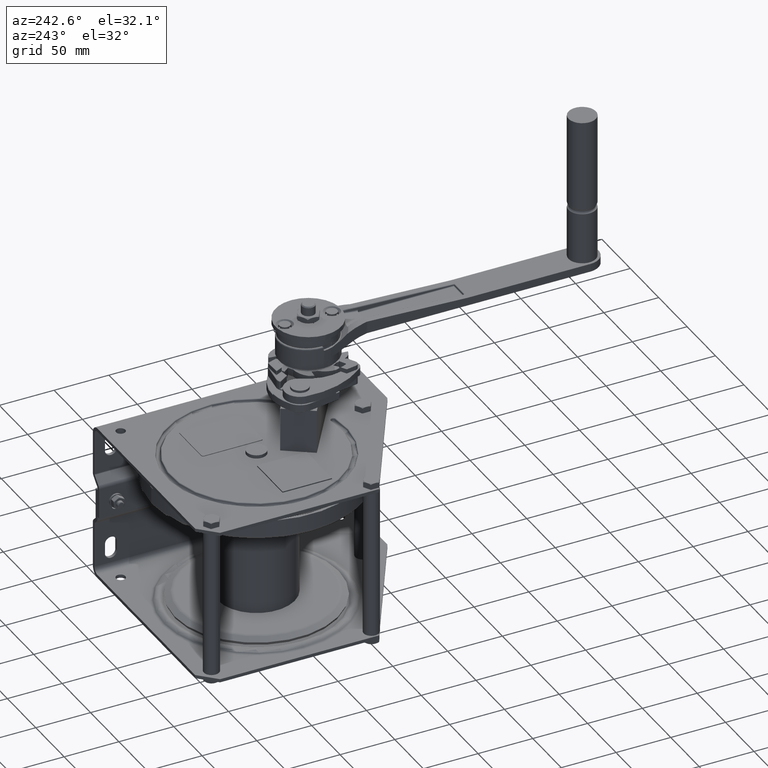
[diagram: clean part render]
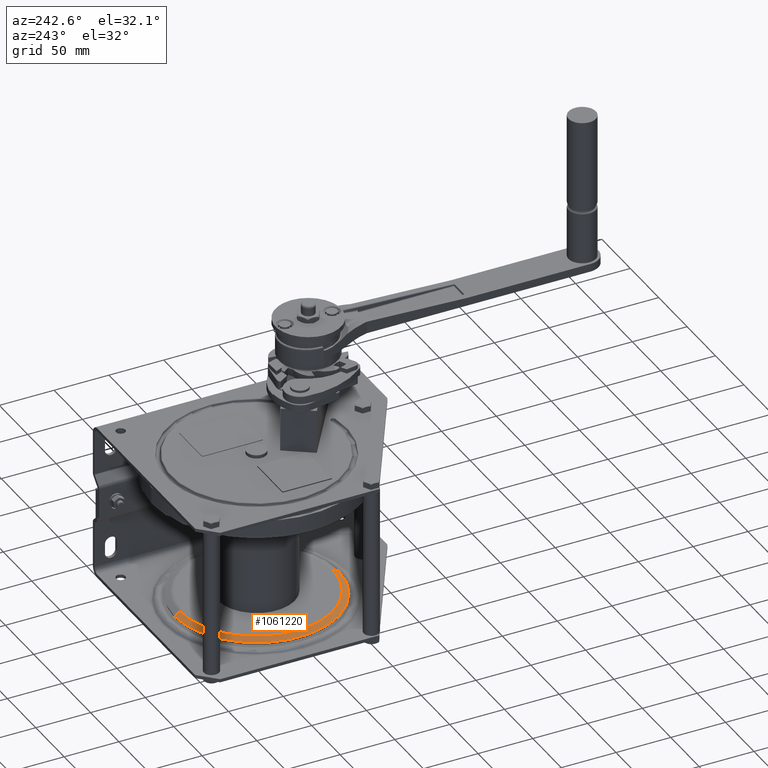
[diagram: same view with one face highlighted and labeled with its STEP entity id]
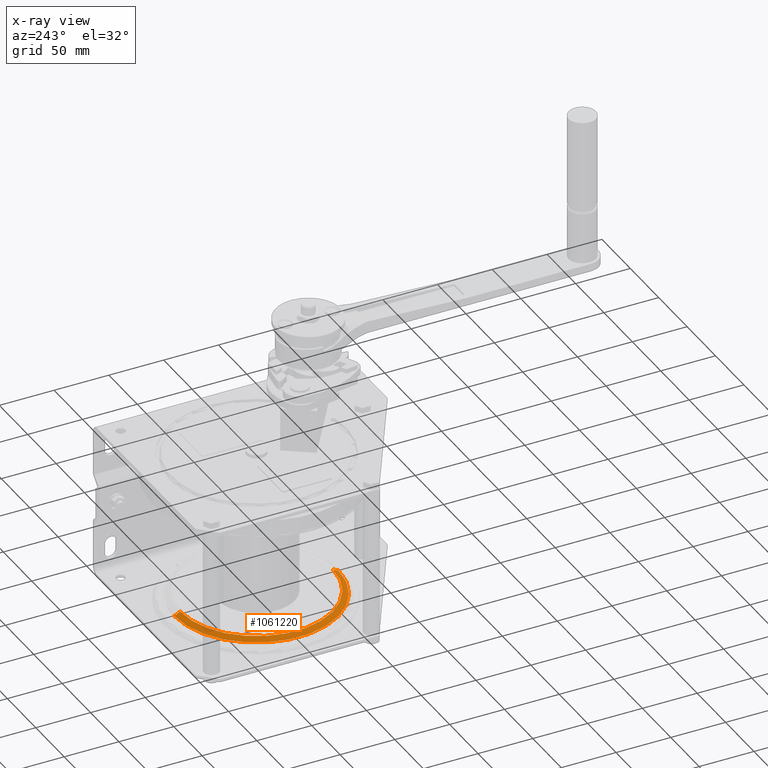
[diagram: x-ray of the same camera — body ghosted, the highlighted face saturated]
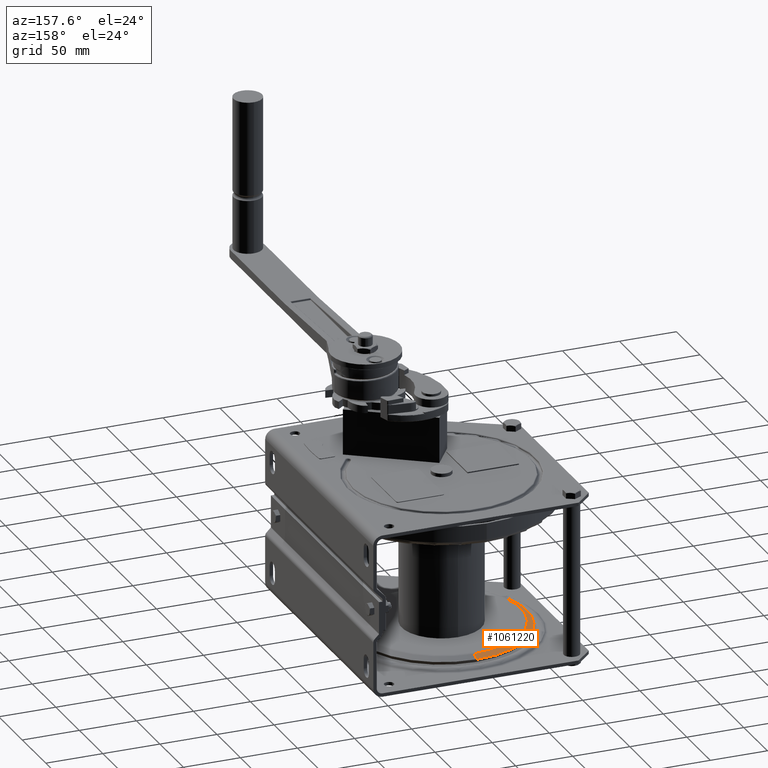
[diagram: same view with one face highlighted and labeled with its STEP entity id]
A machine part, auxiliary view. The second image highlights one B-rep face of the part: STEP entity #1061220.
The next image is the same camera in x-ray: the body ghosted, the highlighted face saturated — about 3% of this face is hidden behind the body in this view.
A second angle (auxiliary view) of the same face is appended — the face is thin or edge-on in the first view.
In plain terms, the highlighted conical surface has half-angle 62.819 deg.
Its self-contained STEP definition (entity closure, byte-faithful):
#231850=CARTESIAN_POINT('',(-35.7406092240885,-335.918201438849,0.));
#231860=DIRECTION('',(0.456799572065833,-0.889569643681972,0.));
#231870=VECTOR('',#231860,84.3104309287931);
#231880=LINE('',#231850,#231870);
#231890=CARTESIAN_POINT('',(-38.512873356293,-330.519505452501,0.));
#231900=VERTEX_POINT('',#231890);
#231910=CARTESIAN_POINT('',(-35.7406092240885,-335.918201438849,0.));
#231920=VERTEX_POINT('',#231910);
#231930=EDGE_CURVE('',#231900,#231920,#231880,.T.);
#231950=CARTESIAN_POINT('',(-35.7406092240885,-260.918201438849,0.));
#231960=DIRECTION('',(1.,0.,0.));
#231970=DIRECTION('',(0.,1.,0.));
#231980=AXIS2_PLACEMENT_3D('',#231950,#231960,#231970);
#231990=CIRCLE('',#231980,75.);
#232000=CARTESIAN_POINT('',(-35.7406092240885,-185.918201438849,
-9.18485099360515E-15));
#232010=VERTEX_POINT('',#232000);
#232040=CARTESIAN_POINT('',(-35.7406092240885,-185.918201438849,
-9.18485099360515E-15));
#232050=DIRECTION('',(0.456799572065833,0.889569643681972,
-1.08940861675378E-16));
#232060=VECTOR('',#232050,84.3104309287931);
#232070=LINE('',#232040,#232060);
#232080=CARTESIAN_POINT('',(-38.512873356293,-191.316897425197,0.));
#232090=VERTEX_POINT('',#232080);
#232100=EDGE_CURVE('',#232090,#232010,#232070,.T.);
#232120=CARTESIAN_POINT('',(-38.512873356293,-260.918201438849,0.));
#232130=DIRECTION('',(1.,0.,0.));
#232140=DIRECTION('',(0.,1.,0.));
#232150=AXIS2_PLACEMENT_3D('',#232120,#232130,#232140);
#232160=CIRCLE('',#232150,69.6013040136517);
#1056670=EDGE_CURVE('',#232010,#231920,#231990,.T.);
#1061100=CARTESIAN_POINT('',(-35.7406092240885,-260.918201438849,0.));
#1061110=DIRECTION('',(1.,0.,0.));
#1061120=DIRECTION('',(0.,-1.,0.));
#1061130=AXIS2_PLACEMENT_3D('',#1061100,#1061110,#1061120);
#1061140=CONICAL_SURFACE('',#1061130,75.,1.09640219165229);
#1061150=EDGE_CURVE('',#232090,#231900,#232160,.T.);
#1061160=ORIENTED_EDGE('',*,*,#1061150,.T.);
#1061170=ORIENTED_EDGE('',*,*,#232100,.F.);
#1061180=ORIENTED_EDGE('',*,*,#1056670,.F.);
#1061190=ORIENTED_EDGE('',*,*,#231930,.T.);
#1061200=EDGE_LOOP('',(#1061190,#1061180,#1061170,#1061160));
#1061210=FACE_OUTER_BOUND('',#1061200,.T.);
#1061220=ADVANCED_FACE('',(#1061210),#1061140,.T.);